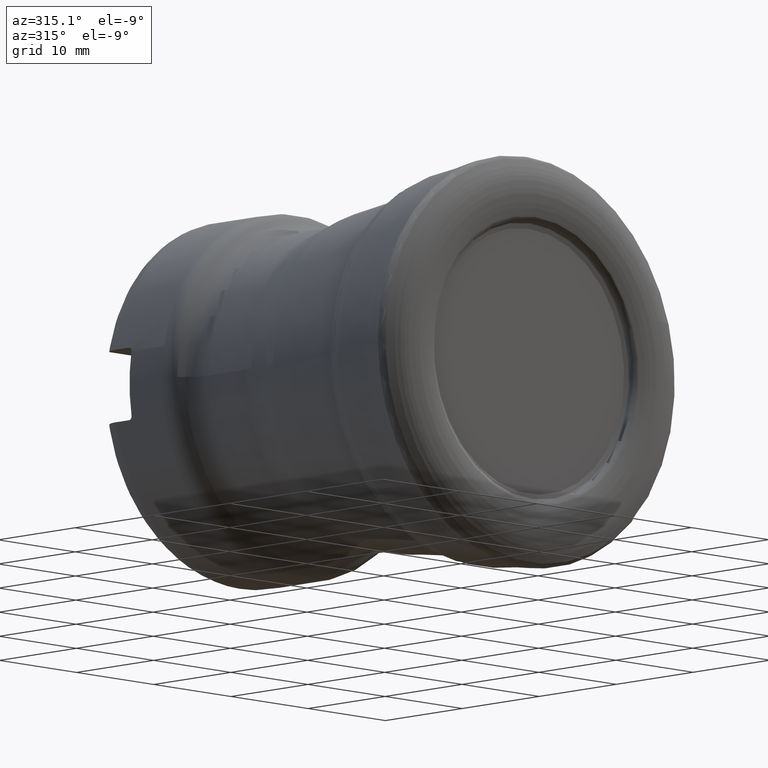
[diagram: clean part render]
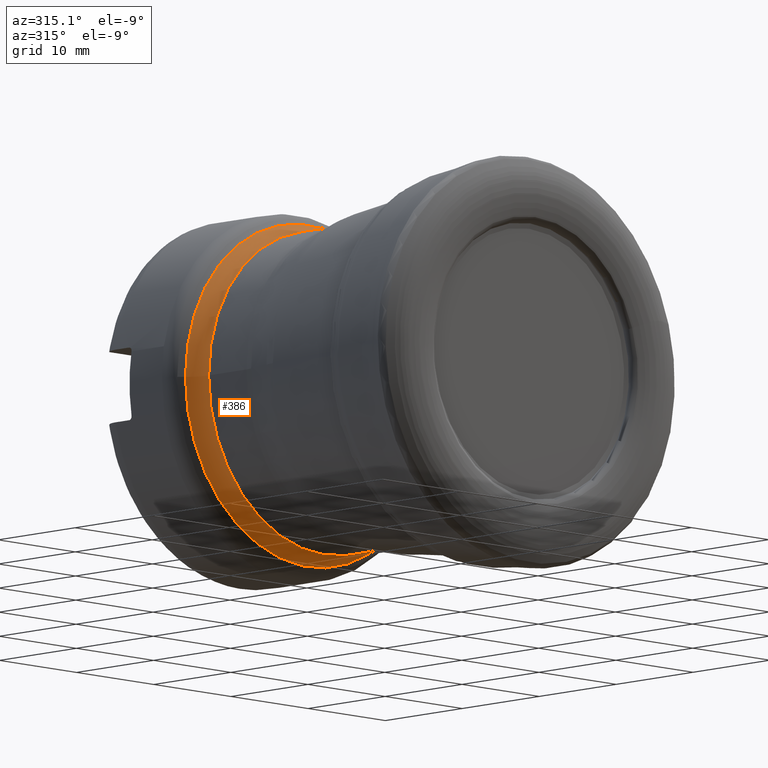
[diagram: same view with one face highlighted and labeled with its STEP entity id]
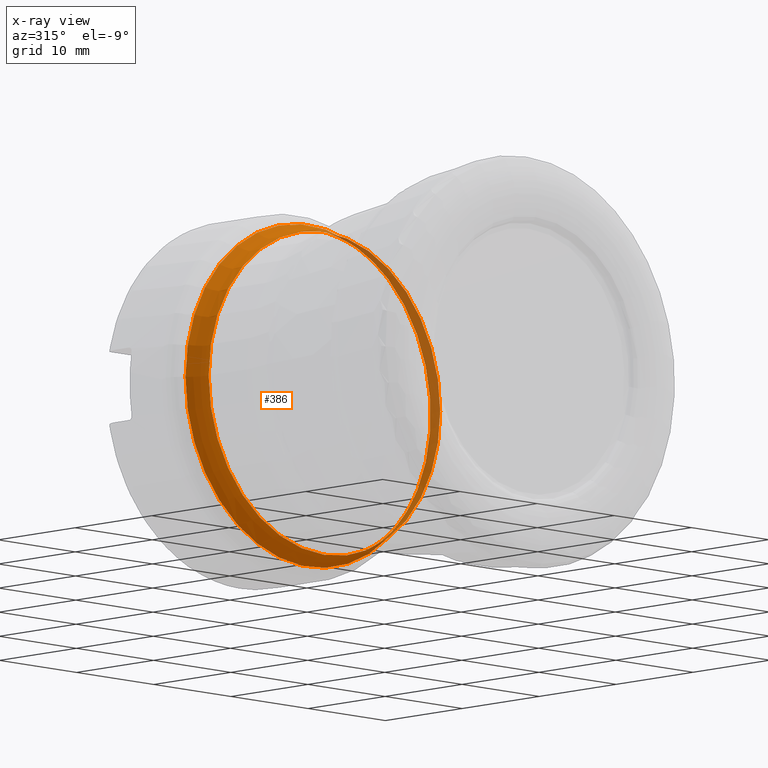
[diagram: x-ray of the same camera — body ghosted, the highlighted face saturated]
A machine part, auxiliary view. The second image highlights one B-rep face of the part: STEP entity #386.
The next image is the same camera in x-ray: the body ghosted, the highlighted face saturated — about 22% of this face is hidden behind the body in this view.
In plain terms, the highlighted toroidal blend (fillet) surface has major radius 18 mm and minor (blend) radius 3 mm.
Its self-contained STEP definition (entity closure, byte-faithful):
#187=TOROIDAL_SURFACE('',#1315,18.,3.);
#386=ADVANCED_FACE('',(#483,#484),#187,.F.);
#483=FACE_BOUND('',#617,.T.);
#484=FACE_BOUND('',#618,.T.);
#617=EDGE_LOOP('',(#831));
#618=EDGE_LOOP('',(#832));
#831=ORIENTED_EDGE('',*,*,#1076,.F.);
#832=ORIENTED_EDGE('',*,*,#1078,.F.);
#975=VERTEX_POINT('',#1783);
#977=VERTEX_POINT('',#1788);
#1076=EDGE_CURVE('',#975,#975,#1189,.T.);
#1078=EDGE_CURVE('',#977,#977,#1191,.T.);
#1189=CIRCLE('',#1266,15.);
#1191=CIRCLE('',#1269,15.8786796564404);
#1266=AXIS2_PLACEMENT_3D('',#1782,#1407,#1408);
#1269=AXIS2_PLACEMENT_3D('',#1787,#1413,#1414);
#1315=AXIS2_PLACEMENT_3D('',#2010,#1521,#1522);
#1407=DIRECTION('',(1.16234042869424E-17,-1.,0.));
#1408=DIRECTION('',(-1.,0.,0.));
#1413=DIRECTION('',(-1.16234042869424E-17,1.,0.));
#1414=DIRECTION('',(-1.,0.,0.));
#1521=DIRECTION('',(-1.16234042869424E-17,1.,0.));
#1522=DIRECTION('',(-1.,0.,0.));
#1782=CARTESIAN_POINT('',(-1.6317309962967E-15,27.7623593128807,0.));
#1783=CARTESIAN_POINT('',(-15.,27.7623593128807,0.));
#1787=CARTESIAN_POINT('',(-1.65638796027201E-15,29.8836796564404,0.));
#1788=CARTESIAN_POINT('',(-15.8786796564404,29.8836796564404,0.));
#2010=CARTESIAN_POINT('',(-1.6317309962967E-15,27.7623593128807,0.));